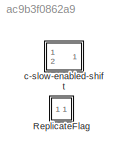
MODEL slx_ac9b3f0862a9
KIND library
CONFIG AbsTol = auto
CONFIG EnableMultiTasking = off
CONFIG FixedStep = auto
CONFIG MaxStep = auto
CONFIG MinStep = auto
CONFIG RelTol = 1e-3
CONFIG SampleTimeConstraint = Unconstrained
CONFIG Solver = VariableStepAuto
CONFIG SolverName = VariableStepAuto
CONFIG StartTime = 0.0
CONFIG StopTime = 10.0
BLOCK [SubSystem] ReplicateFlag
  Ports = []
  RequestExecContextInheritance = off
  Variant = off
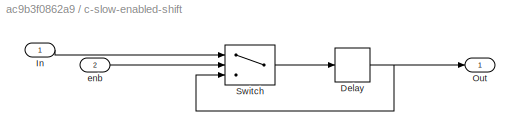
BLOCK [SubSystem] c-slow-enabled-shift
  Ports = [2, 1]
  RequestExecContextInheritance = off
  Variant = off
BLOCK [Delay] c-slow-enabled-shift/Delay
  DelayLength = ShareFactor
  InitialCondition = 0
  InputPortMap = u0
  Ports = [1, 1]
BLOCK [Inport] c-slow-enabled-shift/In
  IconDisplay = Port number
BLOCK [Outport] c-slow-enabled-shift/Out
  IconDisplay = Port number
BLOCK [Switch] c-slow-enabled-shift/Switch
  Criteria = u2 > Threshold
  InputSameDT = off
  SaturateOnIntegerOverflow = off
BLOCK [Inport] c-slow-enabled-shift/enb
  IconDisplay = Port number
  OutDataTypeStr = boolean
  Port = 2
NET c-slow-enabled-shift/Delay:1 -> c-slow-enabled-shift/Out:1, c-slow-enabled-shift/Switch:3
LINE c-slow-enabled-shift/In:1 -> c-slow-enabled-shift/Switch:1
LINE c-slow-enabled-shift/Switch:1 -> c-slow-enabled-shift/Delay:1
LINE c-slow-enabled-shift/enb:1 -> c-slow-enabled-shift/Switch:2
note: NET lines group one-source signal fan-out (src -> all destinations, sorted); 1:1 wires keep LINE
